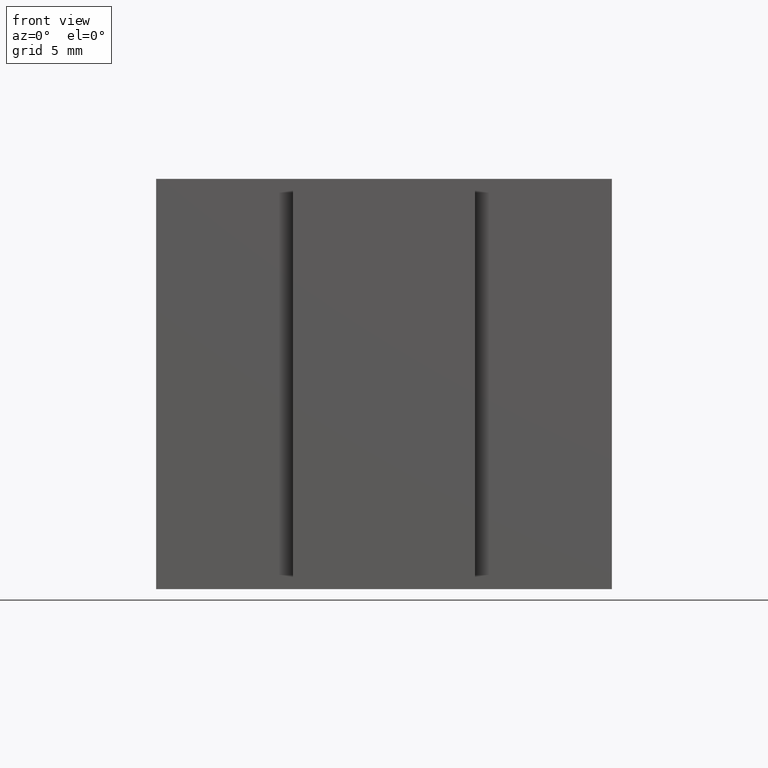
[diagram: clean part render]
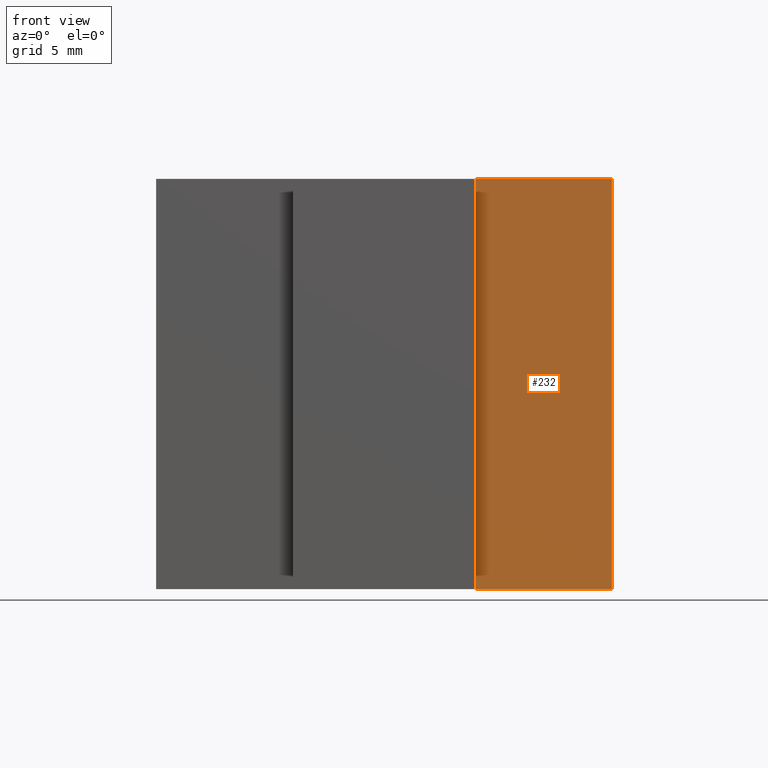
[diagram: same view with one face highlighted and labeled with its STEP entity id]
A machine part, front view. The second image highlights one B-rep face of the part: STEP entity #232.
In plain terms, the highlighted planar face has unit normal (0, -1, 0).
Its self-contained STEP definition (entity closure, byte-faithful):
#26=FACE_OUTER_BOUND('',#38,.T.);
#38=EDGE_LOOP('',(#196,#197,#198,#199));
#41=LINE('',#331,#71);
#52=LINE('',#352,#82);
#68=LINE('',#384,#98);
#69=LINE('',#386,#99);
#71=VECTOR('',#274,10.);
#82=VECTOR('',#287,10.);
#98=VECTOR('',#319,10.);
#99=VECTOR('',#322,10.);
#100=VERTEX_POINT('',#327);
#102=VERTEX_POINT('',#330);
#110=VERTEX_POINT('',#348);
#119=VERTEX_POINT('',#382);
#121=EDGE_CURVE('',#102,#100,#41,.T.);
#132=EDGE_CURVE('',#110,#102,#52,.T.);
#148=EDGE_CURVE('',#100,#119,#68,.T.);
#149=EDGE_CURVE('',#119,#110,#69,.T.);
#196=ORIENTED_EDGE('',*,*,#149,.T.);
#197=ORIENTED_EDGE('',*,*,#132,.T.);
#198=ORIENTED_EDGE('',*,*,#121,.T.);
#199=ORIENTED_EDGE('',*,*,#148,.T.);
#220=PLANE('',#267);
#232=ADVANCED_FACE('',(#26),#220,.T.);
#267=AXIS2_PLACEMENT_3D('',#385,#320,#321);
#274=DIRECTION('',(1.,0.,0.));
#287=DIRECTION('',(0.,0.,-1.));
#319=DIRECTION('',(0.,0.,1.));
#320=DIRECTION('center_axis',(0.,-1.,0.));
#321=DIRECTION('ref_axis',(0.,0.,-1.));
#322=DIRECTION('',(-1.,0.,0.));
#327=CARTESIAN_POINT('',(10.,-7.99999999999999,-9.));
#330=CARTESIAN_POINT('',(4.,-7.99999999999999,-9.));
#331=CARTESIAN_POINT('',(10.,-7.99999999999999,-9.));
#348=CARTESIAN_POINT('',(4.,-7.99999999999999,9.));
#352=CARTESIAN_POINT('',(4.,-7.99999999999999,0.));
#382=CARTESIAN_POINT('',(10.,-7.99999999999999,9.));
#384=CARTESIAN_POINT('',(10.,-7.99999999999999,0.));
#385=CARTESIAN_POINT('Origin',(10.,-7.99999999999999,0.));
#386=CARTESIAN_POINT('',(10.,-7.99999999999999,9.));